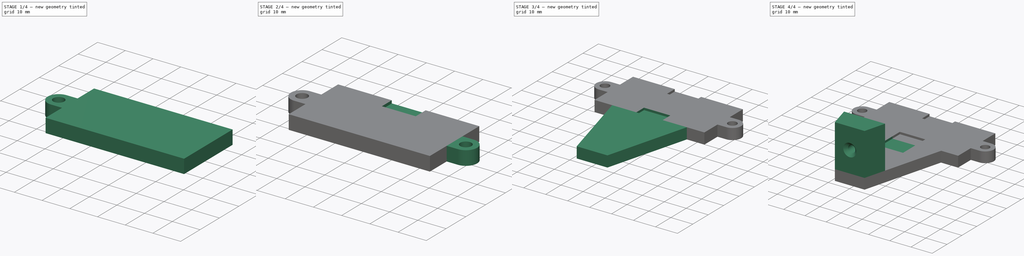
[diagram: build sequence overview — one tinted view per stage of 4, left to right]
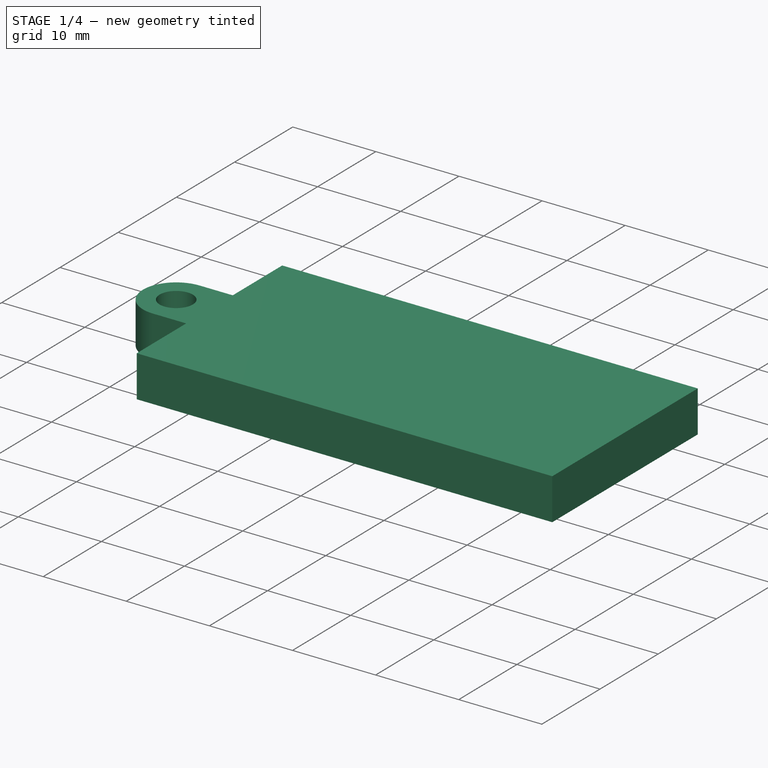
[diagram: stage 1 of 4 — iso view after this stage's code; geometry added in this stage tinted green]
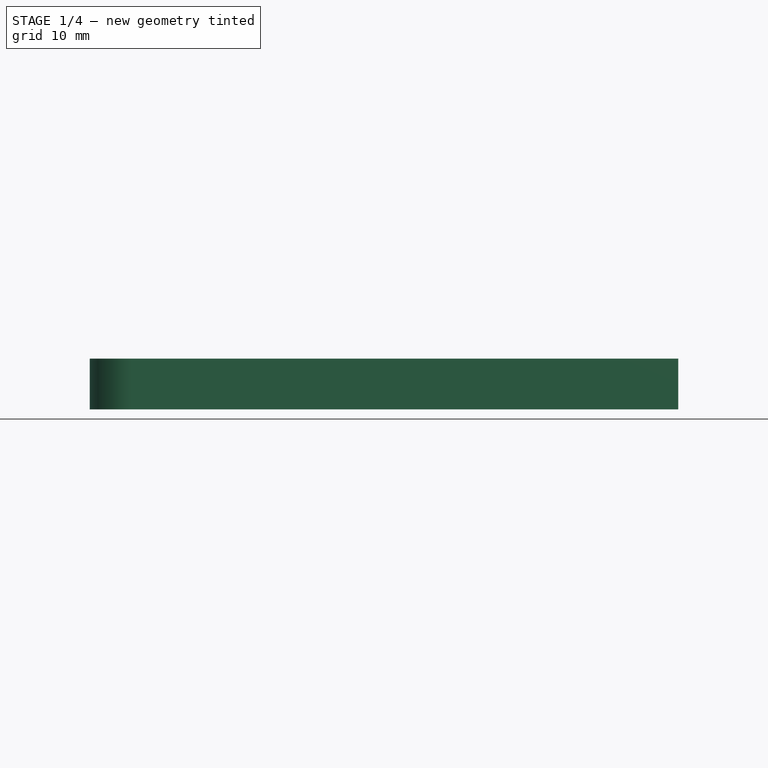
[diagram: stage 1 of 4 — front view after this stage's code; geometry added in this stage tinted green]
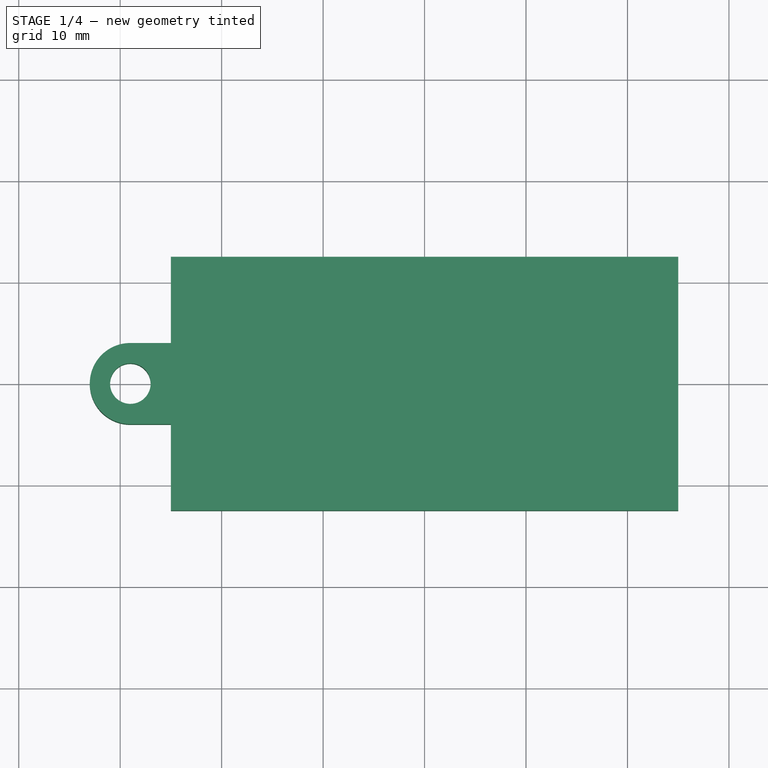
[diagram: stage 1 of 4 — top view after this stage's code; geometry added in this stage tinted green]
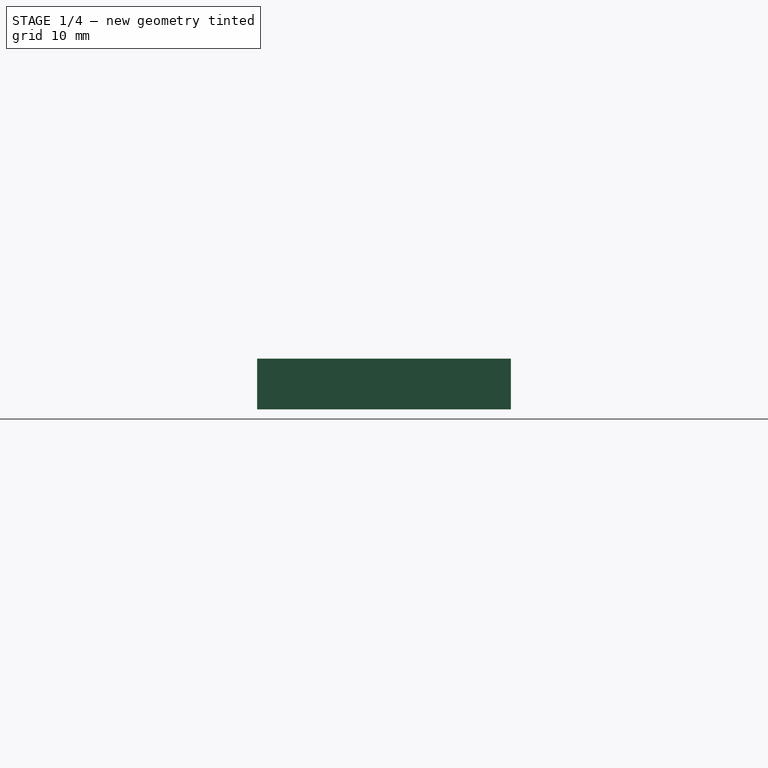
[diagram: stage 1 of 4 — right view after this stage's code; geometry added in this stage tinted green]
FCSTD DOCUMENT  (FreeCAD 0.19R24291 (Git))
Label: ultra-sonic-sensor-holder
License: All rights reserved
LicenseURL: http://en.wikipedia.org/wiki/All_rights_reserved
objects: Sketcher::SketchObject×9, PartDesign::Pad×4, PartDesign::Pocket×4, PartDesign::Mirrored×3, PartDesign::Hole×1, PartDesign::Body×1
note: 31 computed .brp shape members not serialized (recipe doc carries the construction recipe); baked Part::Feature solids carry a one-line shape summary decoded from their .brp

FEATURE [Sketcher::SketchObject] Sketch
  FullyConstrained = true
  MapMode = 5
  Support = -> [XY_Plane]
  sketch-geometry (4):
    g0: LineSegment StartX=-25 StartY=12.5 StartZ=0 EndX=25 EndY=12.5 EndZ=0
    g1: LineSegment StartX=25 StartY=12.5 StartZ=0 EndX=25 EndY=-12.5 EndZ=0
    g2: LineSegment StartX=25 StartY=-12.5 StartZ=0 EndX=-25 EndY=-12.5 EndZ=0
    g3: LineSegment StartX=-25 StartY=-12.5 StartZ=0 EndX=-25 EndY=12.5 EndZ=0
  constraints (10):
    c: Coincident(g0,g1)
    c: Coincident(g1,g2)
    c: Coincident(g2,g3)
    c: Coincident(g3,g0)
    c: Horizontal(g0)
    c: Vertical(g1)
    c: Symmetric(g1,g2,g-2)
    c: DistanceX(g2,g2) = 50
    c: DistanceY(g1,g1) = 25
    c: Symmetric(g2,g0,g-1)
FEATURE [PartDesign::Pad] Pad
  Direction = (1,1,1)
  Length = 5
  Length2 = 100
  Profile = -> Sketch
  Type = 0
FEATURE [Sketcher::SketchObject] Sketch001
  ExternalGeometry = -> [Pad]
  FullyConstrained = true
  MapMode = 5
  Placement = pos=(0,0,5) rot=(0,0,1;0rad)
  Support = -> [Pad]
  sketch-geometry (4):
    g0: ArcOfCircle CenterX=-25 CenterY=0 CenterZ=0 NormalX=0 NormalY=0 NormalZ=1 AngleXU=0 Radius=4 StartAngle=4.71239 EndAngle=7.85398
    g1: ArcOfCircle CenterX=-29 CenterY=-3e-16 CenterZ=0 NormalX=0 NormalY=0 NormalZ=1 AngleXU=0 Radius=4 StartAngle=1.5708 EndAngle=4.71239
    g2: LineSegment StartX=-25 StartY=4 StartZ=0 EndX=-29 EndY=4 EndZ=0
    g3: LineSegment StartX=-25 StartY=-4 StartZ=0 EndX=-29 EndY=-4 EndZ=0
  constraints (10):
    c: Tangent(g0,g3) = 1.5708
    c: Tangent(g0,g2) = -1.5708
    c: Tangent(g2,g1) = -1.5708
    c: Tangent(g3,g1) = 1.5708
    c: Horizontal(g2)
    c: Equal(g0,g1)
    c: PointOnObject(g0,g-1)
    c: Radius(g1) = 4
    c: PointOnObject(g0,g-3)
    c: DistanceX(g2,g2) = 4
FEATURE [PartDesign::Pad] Pad001
  BaseFeature = -> Pad
  Direction = (1,1,1)
  Length = 5
  Length2 = 100
  Profile = -> Sketch001
  Reversed = true
  Type = 0
FEATURE [Sketcher::SketchObject] Sketch002
  ExternalGeometry = -> [Pad001]
  FullyConstrained = false
  MapMode = 5
  Placement = pos=(0,0,5) rot=(0,0,1;0rad)
  Support = -> [Pad001]
  sketch-geometry (1):
    g0: Circle CenterX=-29 CenterY=0 CenterZ=0 NormalX=0 NormalY=0 NormalZ=1 AngleXU=0 Radius=2
  constraints (2):
    c: PointOnObject(g0,g-1)
    c: Radius(g0) = 2
FEATURE [PartDesign::Pocket] Pocket
  BaseFeature = -> Pad001
  Length = 5
  Length2 = 100
  Profile = -> Sketch002
  Type = 1
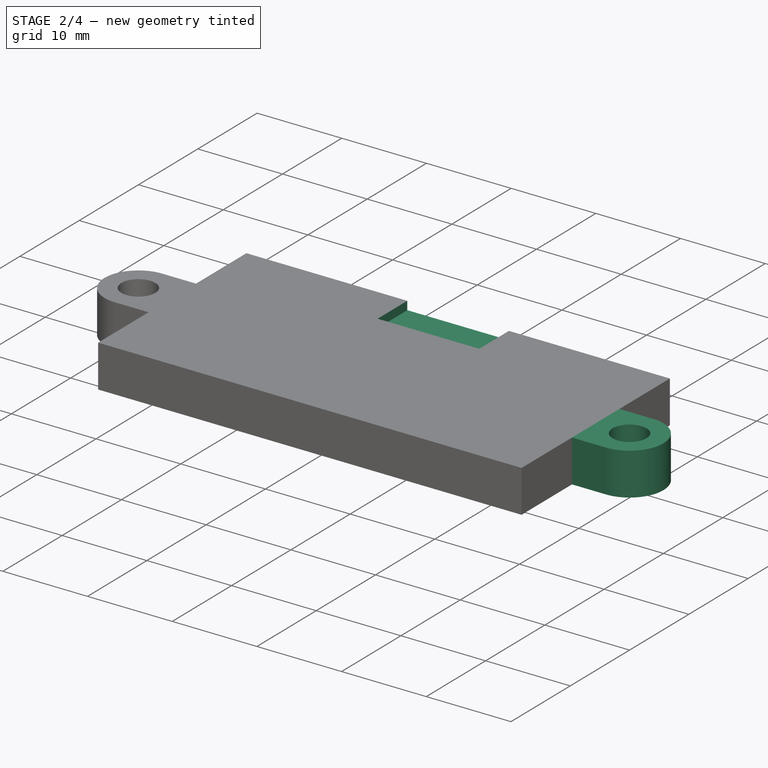
[diagram: stage 2 of 4 — iso view after this stage's code; geometry added in this stage tinted green]
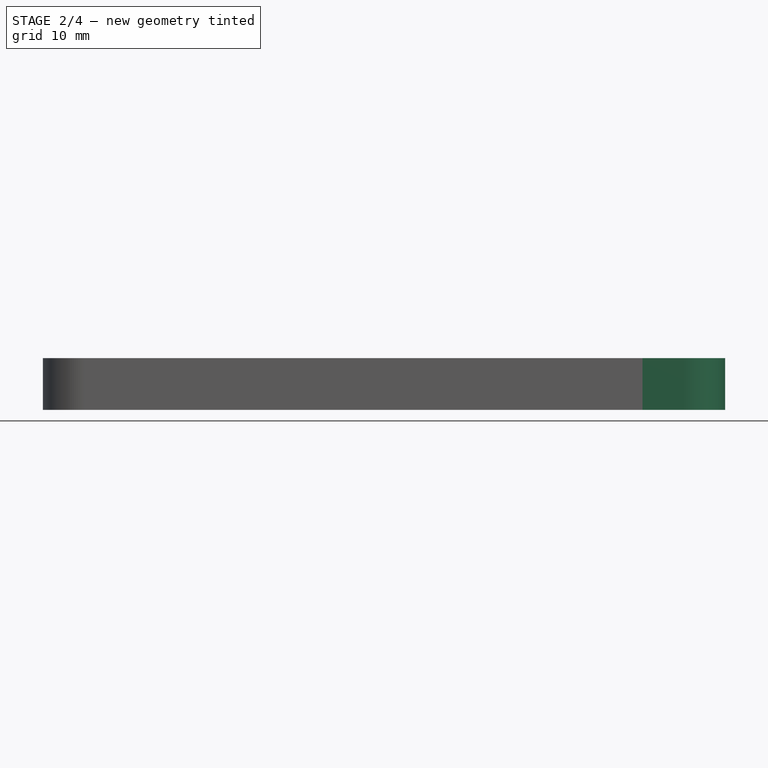
[diagram: stage 2 of 4 — front view after this stage's code; geometry added in this stage tinted green]
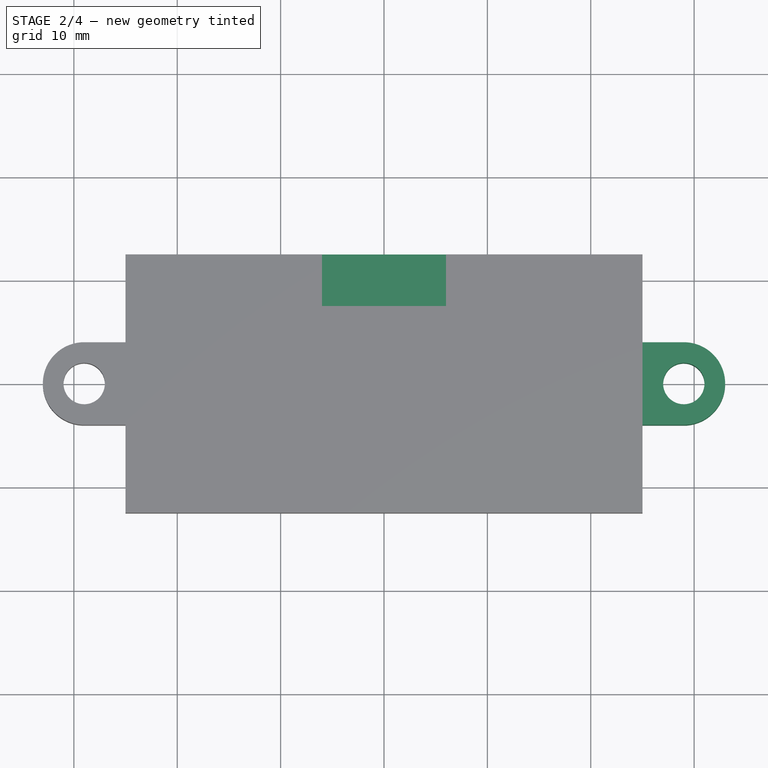
[diagram: stage 2 of 4 — top view after this stage's code; geometry added in this stage tinted green]
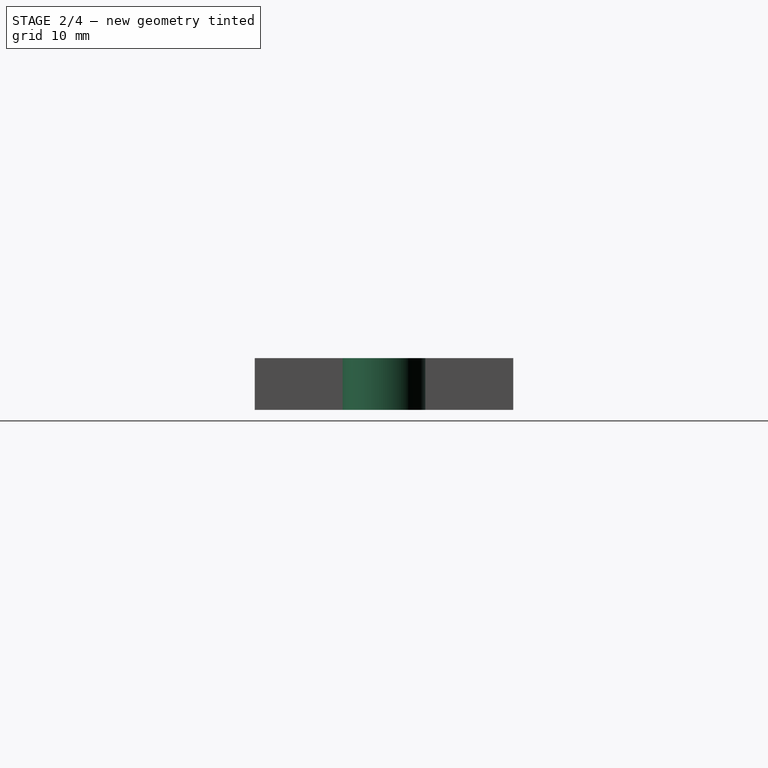
[diagram: stage 2 of 4 — right view after this stage's code; geometry added in this stage tinted green]
FEATURE [PartDesign::Mirrored] Mirrored
  BaseFeature = -> Pocket
  MirrorPlane = -> Sketch001 [V_Axis]
  Originals = -> [Pad001]
FEATURE [PartDesign::Mirrored] Mirrored001
  BaseFeature = -> Mirrored
  MirrorPlane = -> Sketch002 [V_Axis]
  Originals = -> [Pocket]
FEATURE [Sketcher::SketchObject] Sketch004
  ExternalGeometry = -> [Mirrored001]
  FullyConstrained = true
  MapMode = 5
  Placement = pos=(0,0,5) rot=(0,0,1;0rad)
  Support = -> [Mirrored001]
  sketch-geometry (4):
    g0: LineSegment StartX=-6 StartY=12.5 StartZ=0 EndX=6 EndY=12.5 EndZ=0
    g1: LineSegment StartX=6 StartY=12.5 StartZ=0 EndX=6 EndY=7.5 EndZ=0
    g2: LineSegment StartX=6 StartY=7.5 StartZ=0 EndX=-6 EndY=7.5 EndZ=0
    g3: LineSegment StartX=-6 StartY=7.5 StartZ=0 EndX=-6 EndY=12.5 EndZ=0
  constraints (11):
    c: Coincident(g0,g1)
    c: Coincident(g1,g2)
    c: Coincident(g2,g3)
    c: Coincident(g3,g0)
    c: Horizontal(g0)
    c: Vertical(g1)
    c: Vertical(g3)
    c: DistanceX(g0,g0) = 12
    c: DistanceY(g3,g3) = 5
    c: Symmetric(g1,g2,g-2)
    c: PointOnObject(g0,g-3)
FEATURE [PartDesign::Pocket] Pocket001
  BaseFeature = -> Mirrored001
  Length = 1
  Length2 = 100
  Profile = -> Sketch004
  Type = 0
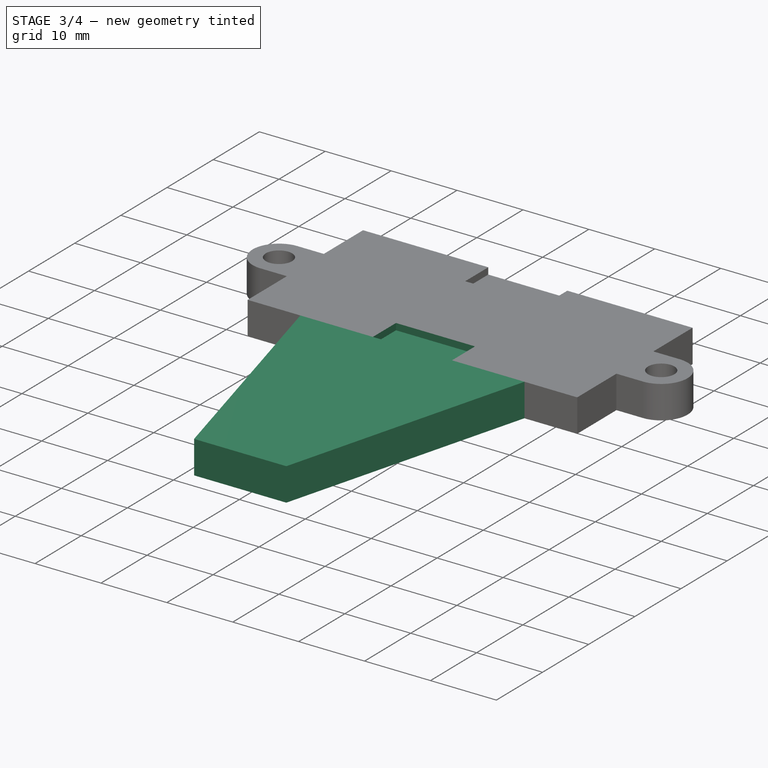
[diagram: stage 3 of 4 — iso view after this stage's code; geometry added in this stage tinted green]
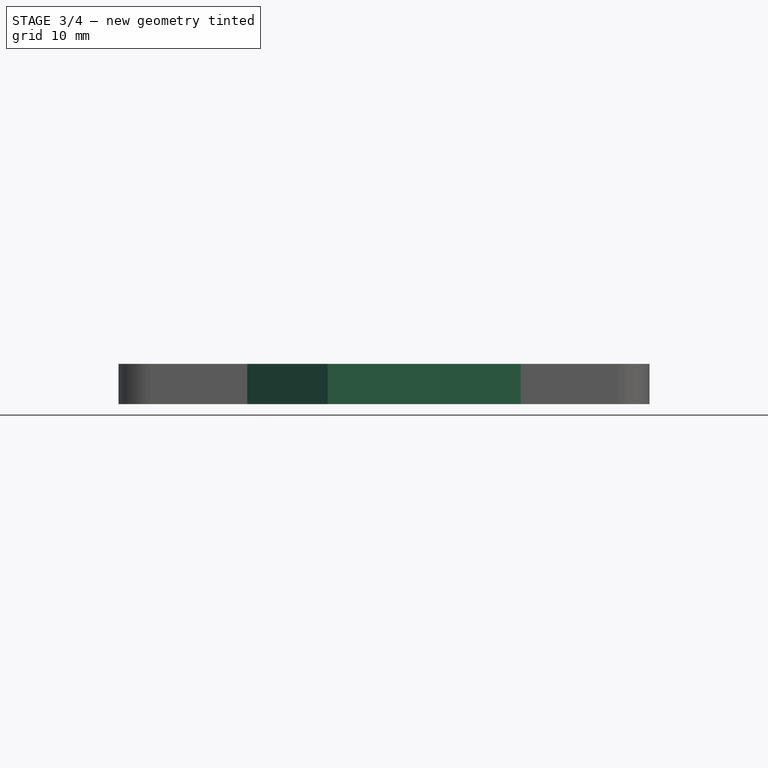
[diagram: stage 3 of 4 — front view after this stage's code; geometry added in this stage tinted green]
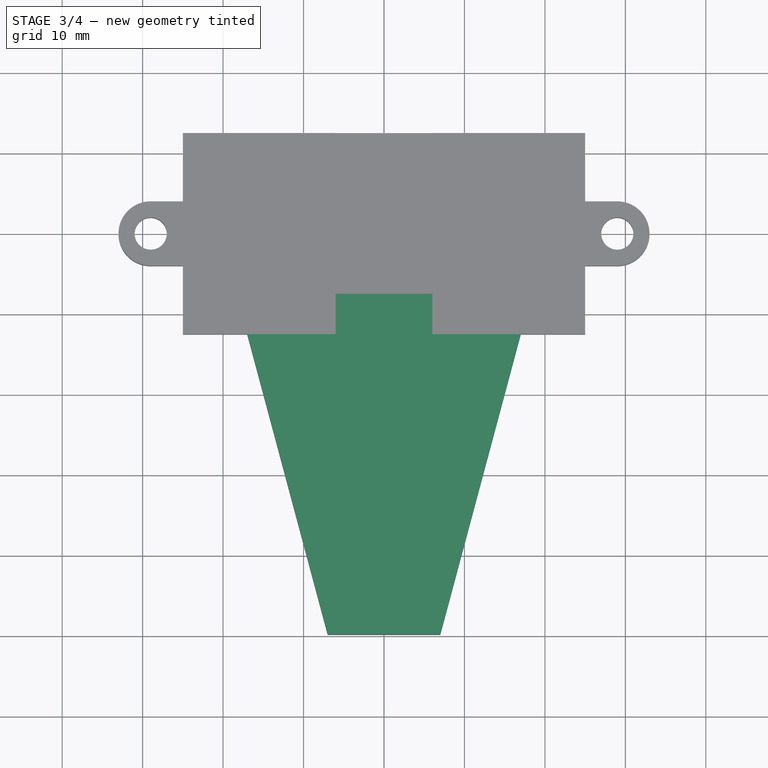
[diagram: stage 3 of 4 — top view after this stage's code; geometry added in this stage tinted green]
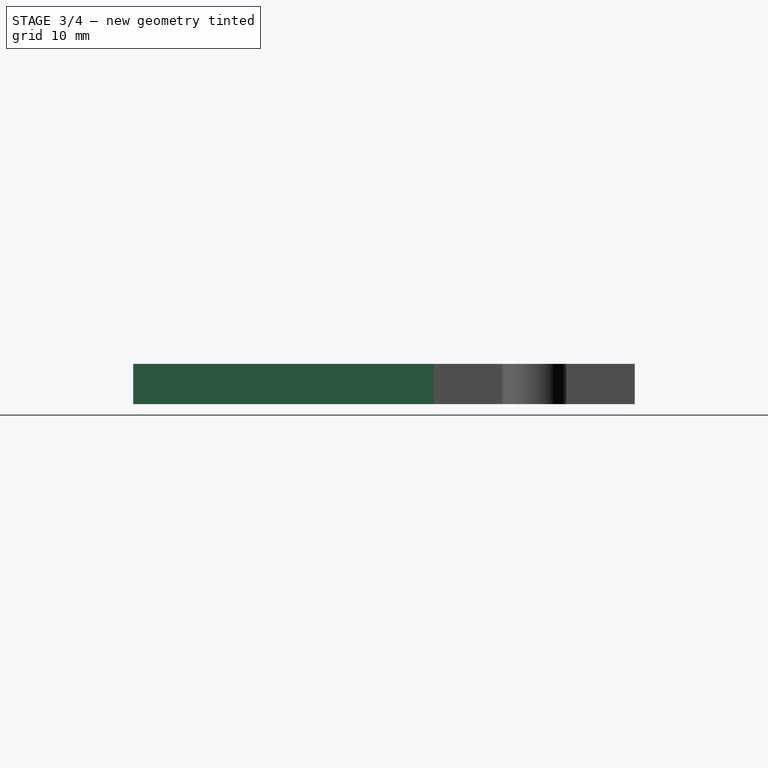
[diagram: stage 3 of 4 — right view after this stage's code; geometry added in this stage tinted green]
FEATURE [PartDesign::Mirrored] Mirrored002
  BaseFeature = -> Pocket001
  MirrorPlane = -> Sketch004 [H_Axis]
  Originals = -> [Pocket001]
FEATURE [Sketcher::SketchObject] Sketch005
  ExternalGeometry = -> [Mirrored002]
  FullyConstrained = true
  MapMode = 5
  Placement = pos=(0,0,0) rot=(1,0,0;3.14159rad)
  Support = -> [Mirrored002]
  sketch-geometry (4):
    g0: LineSegment StartX=-17 StartY=12.5 StartZ=0 EndX=-7 EndY=49.8205 EndZ=0
    g1: LineSegment StartX=-7 StartY=49.8205 StartZ=0 EndX=7 EndY=49.8205 EndZ=0
    g2: LineSegment StartX=7 StartY=49.8205 StartZ=0 EndX=17 EndY=12.5 EndZ=0
    g3: LineSegment StartX=17 StartY=12.5 StartZ=0 EndX=-17 EndY=12.5 EndZ=0
  constraints (11):
    c: Coincident(g0,g1)
    c: Horizontal(g1)
    c: Coincident(g1,g2)
    c: Coincident(g2,g3)
    c: Coincident(g3,g0)
    c: Angle(g3,g0) = 1.309
    c: Angle(g2,g3) = 1.309
    c: Symmetric(g0,g2,g-2)
    c: PointOnObject(g2,g-3)
    c: DistanceX(g1,g1) = 14
    c: Distance(g3) = 34
FEATURE [PartDesign::Pad] Pad002
  BaseFeature = -> Mirrored002
  Direction = (1,1,1)
  Length = 5
  Length2 = 100
  Profile = -> Sketch005
  Reversed = true
  Type = 0
FEATURE [Sketcher::SketchObject] Sketch008
  FullyConstrained = false
  MapMode = 5
  Placement = pos=(-25,0,0) rot=(0.57735,-0.57735,-0.57735;2.0944rad)
  sketch-geometry (4):
    g0: LineSegment StartX=-4 StartY=0 StartZ=0 EndX=4 EndY=0 EndZ=0
    g1: LineSegment StartX=4 StartY=0 StartZ=0 EndX=4 EndY=-10 EndZ=0
    g2: LineSegment StartX=4 StartY=-10 StartZ=0 EndX=-4 EndY=-10 EndZ=0
    g3: LineSegment StartX=-4 StartY=-10 StartZ=0 EndX=-4 EndY=0 EndZ=0
  constraints (9):
    c: Coincident(g0,g1)
    c: Coincident(g1,g2)
    c: Coincident(g2,g3)
    c: Coincident(g3,g0)
    c: Horizontal(g0)
    c: Vertical(g1)
    c: Vertical(g3)
    c: Symmetric(g2,g1,g-2)
    c: DistanceY(g1,g1) = 10
FEATURE [PartDesign::Pocket] Pocket002
  BaseFeature = -> Pad002
  Length = 1
  Length2 = 100
  Profile = -> Sketch008
  Type = 0
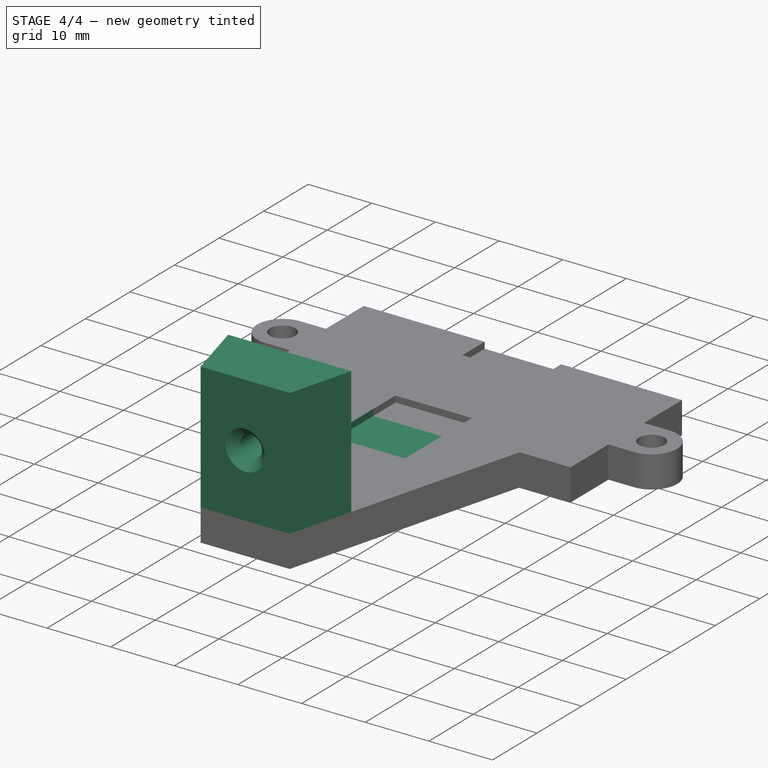
[diagram: stage 4 of 4 — iso view after this stage's code; geometry added in this stage tinted green]
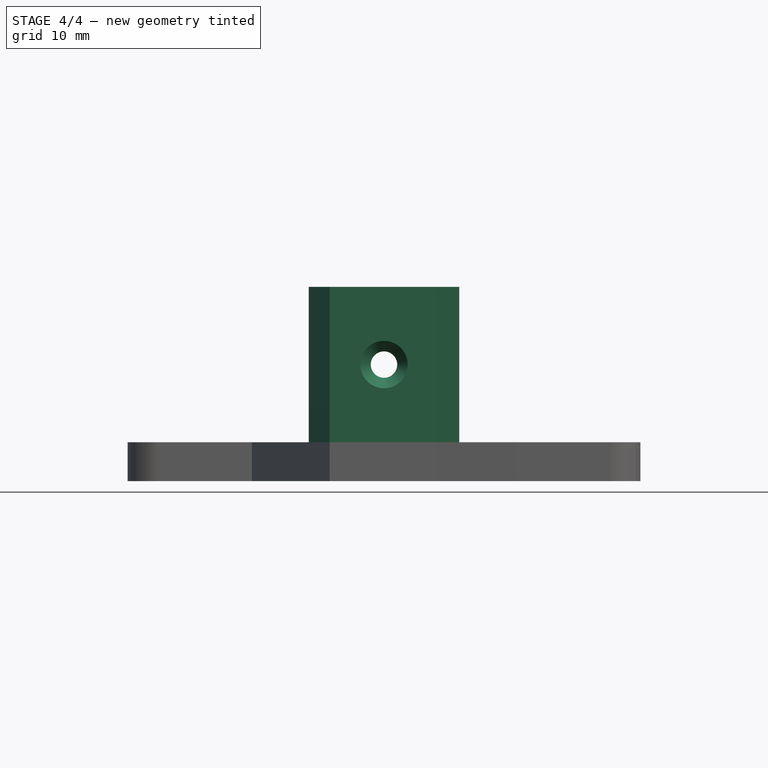
[diagram: stage 4 of 4 — front view after this stage's code; geometry added in this stage tinted green]
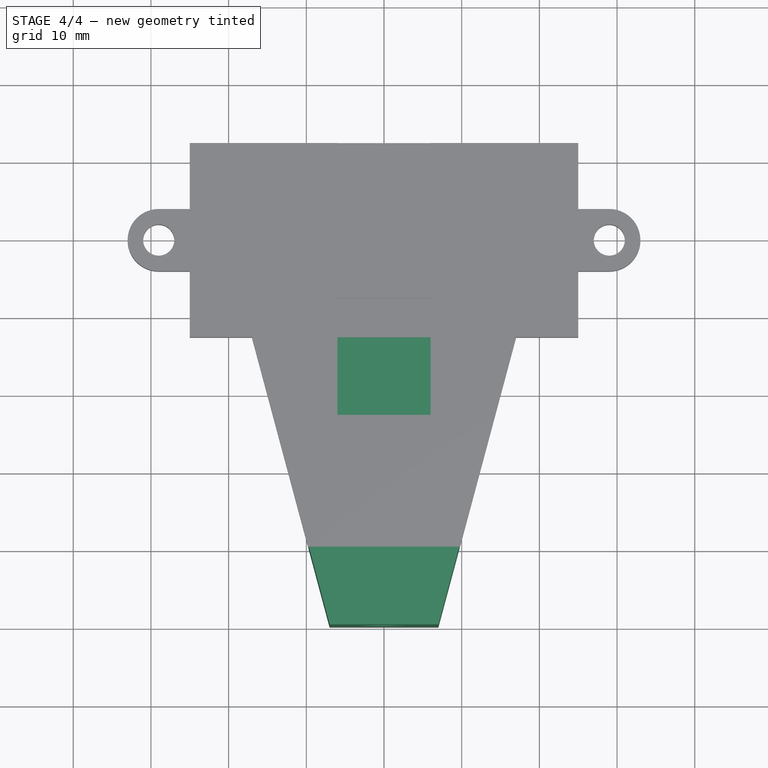
[diagram: stage 4 of 4 — top view after this stage's code; geometry added in this stage tinted green]
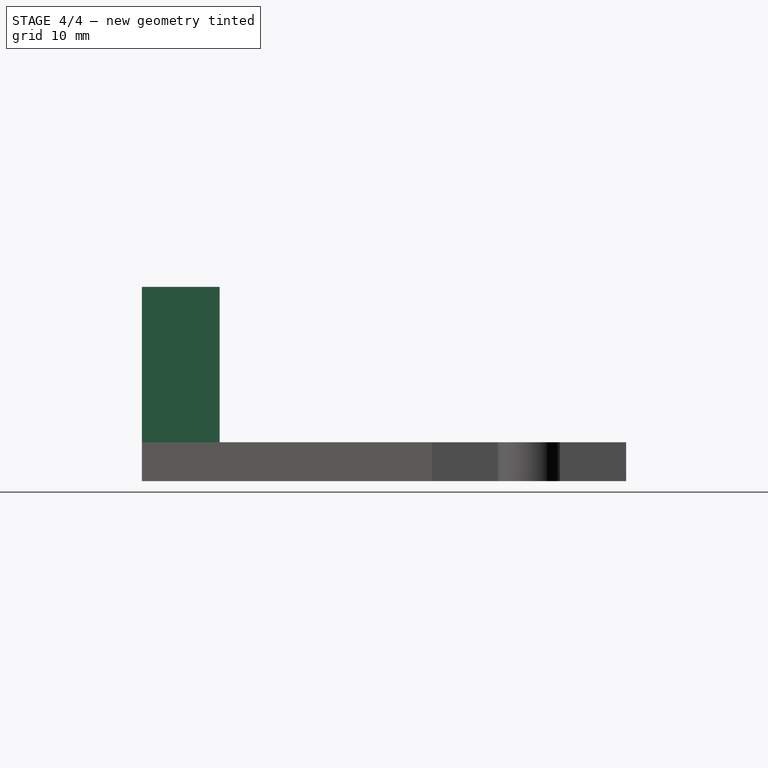
[diagram: stage 4 of 4 — right view after this stage's code; geometry added in this stage tinted green]
FEATURE [Sketcher::SketchObject] Sketch009
  ExternalGeometry = -> [Pad002]
  FullyConstrained = true
  MapMode = 5
  Placement = pos=(0,0,5) rot=(0,0,1;0rad)
  Support = -> [Pad002]
  sketch-geometry (4):
    g0: LineSegment StartX=-6 StartY=-12.5 StartZ=0 EndX=6 EndY=-12.5 EndZ=0
    g1: LineSegment StartX=6 StartY=-12.5 StartZ=0 EndX=6 EndY=-22.5 EndZ=0
    g2: LineSegment StartX=6 StartY=-22.5 StartZ=0 EndX=-6 EndY=-22.5 EndZ=0
    g3: LineSegment StartX=-6 StartY=-22.5 StartZ=0 EndX=-6 EndY=-12.5 EndZ=0
  constraints (10):
    c: Coincident(g0,g1)
    c: Coincident(g1,g2)
    c: Coincident(g2,g3)
    c: Coincident(g3,g0)
    c: Horizontal(g2)
    c: Vertical(g1)
    c: Vertical(g3)
    c: Coincident(g0,g-3)
    c: Coincident(g0,g-4)
    c: DistanceY(g1,g1) = 10
FEATURE [PartDesign::Pocket] Pocket003
  BaseFeature = -> Pocket002
  Length = 1
  Length2 = 100
  Profile = -> Sketch009
  Type = 0
FEATURE [Sketcher::SketchObject] Sketch010
  ExternalGeometry = -> [Pocket003]
  FullyConstrained = true
  MapMode = 5
  Placement = pos=(0,0,5) rot=(0,0,1;0rad)
  Support = -> [Pocket003]
  sketch-geometry (4):
    g0: LineSegment StartX=-7 StartY=-49.8205 StartZ=0 EndX=7 EndY=-49.8205 EndZ=0
    g1: LineSegment StartX=7 StartY=-49.8205 StartZ=0 EndX=9.67949 EndY=-39.8205 EndZ=0
    g2: LineSegment StartX=9.67949 StartY=-39.8205 StartZ=0 EndX=-9.67949 EndY=-39.8205 EndZ=0
    g3: LineSegment StartX=-9.67949 StartY=-39.8205 StartZ=0 EndX=-7 EndY=-49.8205 EndZ=0
  constraints (10):
    c: Coincident(g0,g1)
    c: Coincident(g1,g2)
    c: Horizontal(g2)
    c: Coincident(g2,g3)
    c: Coincident(g3,g0)
    c: PointOnObject(g2,g-3)
    c: PointOnObject(g1,g-4)
    c: Coincident(g0,g-3)
    c: Coincident(g-4,g0)
    c: Distance(g0,g2) = 10
FEATURE [PartDesign::Pad] Pad003
  BaseFeature = -> Pocket003
  Direction = (1,1,1)
  Length = 20
  Length2 = 100
  Profile = -> Sketch010
  Type = 0
FEATURE [Sketcher::SketchObject] Sketch011
  ExternalGeometry = -> [Pad003]
  FullyConstrained = false
  MapMode = 5
  Placement = pos=(0,-49.8205,0) rot=(1,0,0;1.5708rad)
  Support = -> [Pad003]
  sketch-geometry (1):
    g0: Circle CenterX=6.2e-15 CenterY=15 CenterZ=0 NormalX=0 NormalY=0 NormalZ=1 AngleXU=0 Radius=1.93211
  constraints (1):
    c: Symmetric(g-3,g-4,g0)
FEATURE [PartDesign::Hole] Hole
  BaseFeature = -> Pad003
  Depth = 25
  DepthType = 0
  Diameter = 3.4
  DrillForDepth = false
  DrillPoint = 1
  DrillPointAngle = 118
  HoleCutCountersinkAngle = 90
  HoleCutCustomValues = false
  HoleCutDepth = 0
  HoleCutDiameter = 6.1
  HoleCutType = 2
  ModelActualThread = false
  Profile = -> Sketch011
  Tapered = false
  TaperedAngle = 90
  ThreadAngle = 0
  ThreadClass = 0
  ThreadCutOffInner = 0
  ThreadCutOffOuter = 0
  ThreadDirection = 0
  ThreadFit = 0
  ThreadPitch = 0
  ThreadSize = 9
  ThreadType = 1
  Threaded = false
FEATURE [PartDesign::Body] Body
  Group = -> [Sketch,Pad,Sketch001,Pad001,Sketch002,Pocket,Mirrored,Mirrored001,Sketch004,Pocket001,Mirrored002,Sketch005,Pad002,Sketch008,Pocket002,Sketch009,Pocket003,Sketch010,Pad003,Sketch011,Hole]
  Origin = -> Origin
  Tip = -> Hole
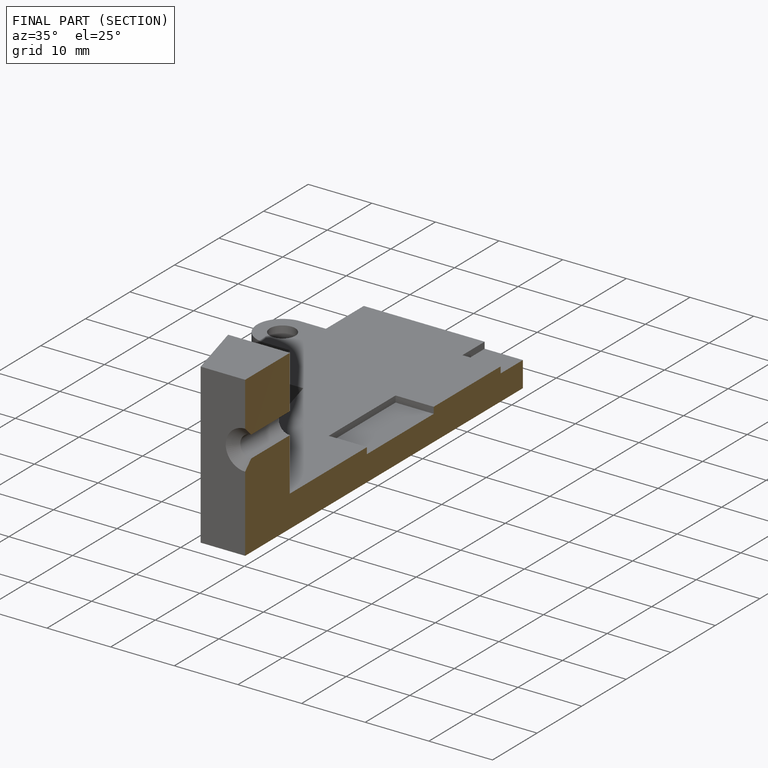
[diagram: finished part — half-section view (interior)]
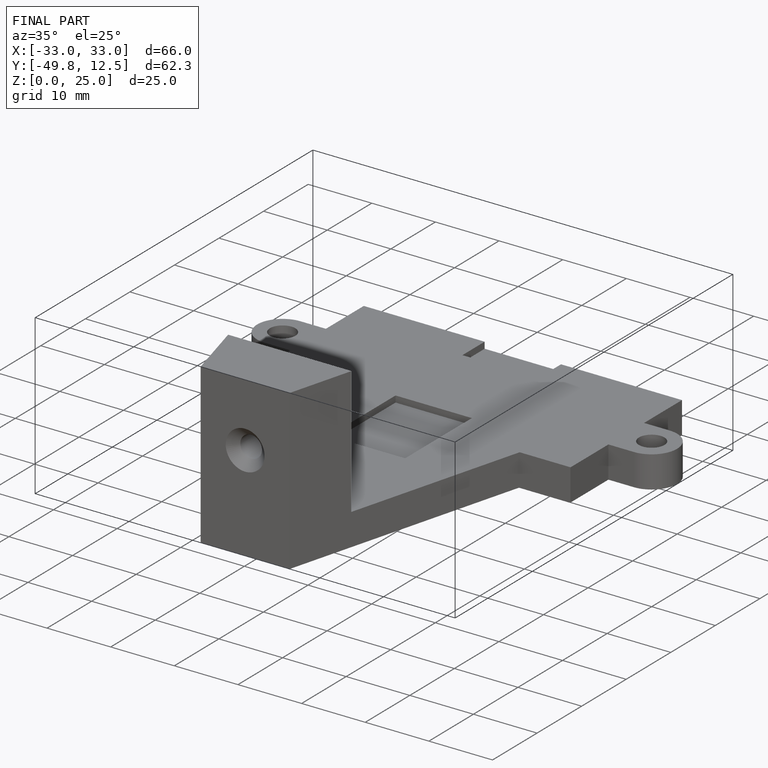
[diagram: finished part — iso view with bounding-box wireframe]
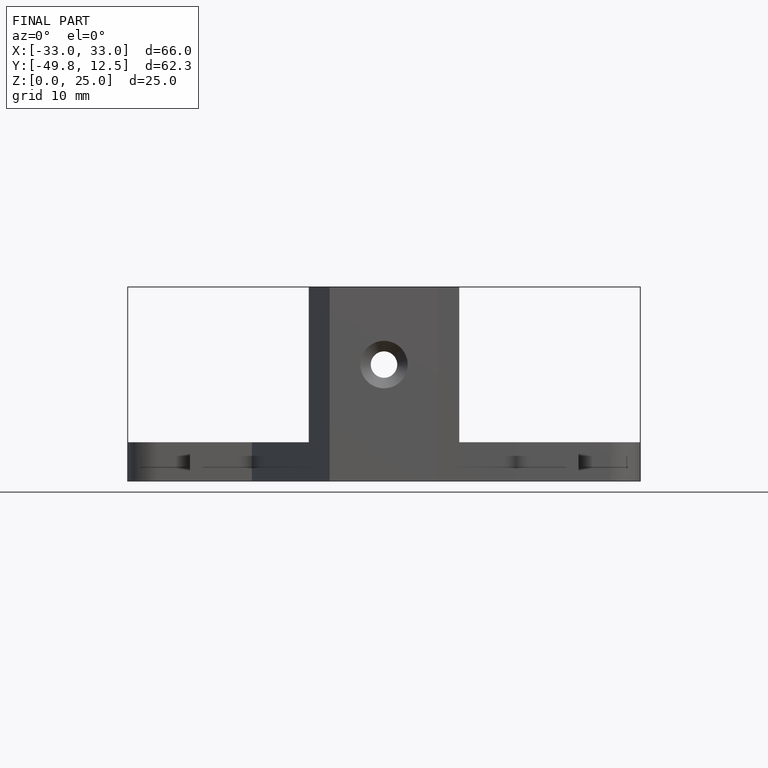
[diagram: finished part — front view with bounding-box wireframe]
